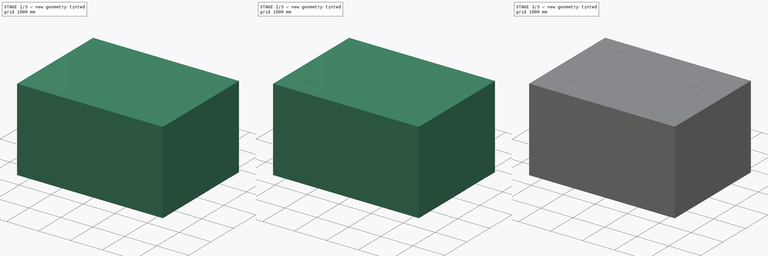
[diagram: build sequence overview — one tinted view per stage of 3, left to right]
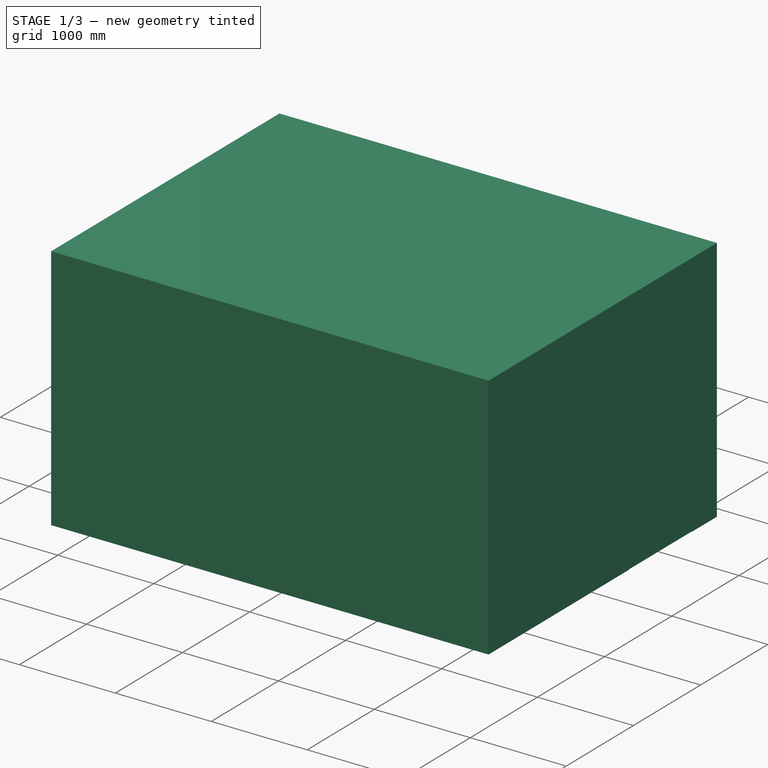
[diagram: stage 1 of 3 — iso view after this stage's code; geometry added in this stage tinted green]
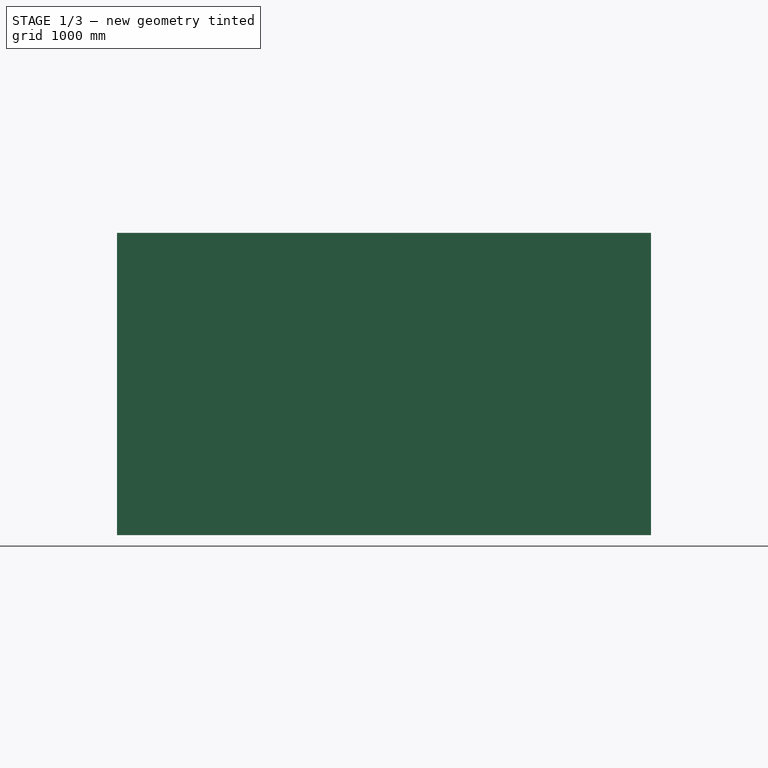
[diagram: stage 1 of 3 — front view after this stage's code; geometry added in this stage tinted green]
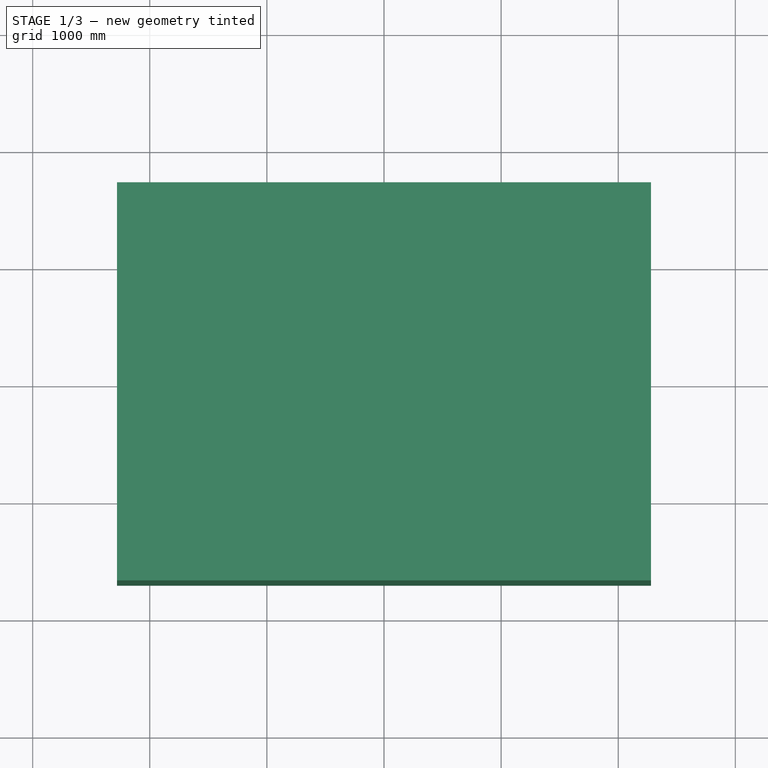
[diagram: stage 1 of 3 — top view after this stage's code; geometry added in this stage tinted green]
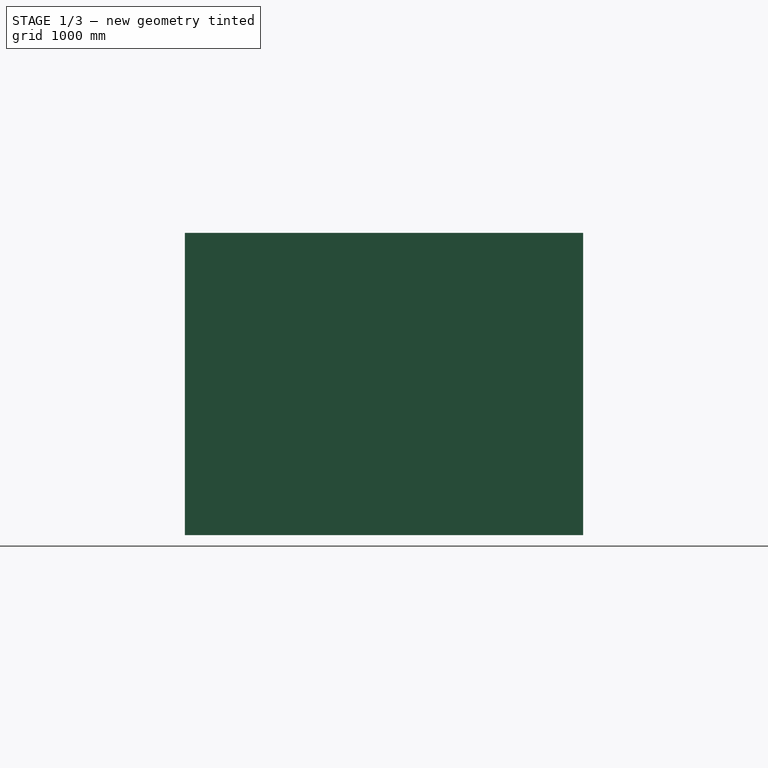
[diagram: stage 1 of 3 — right view after this stage's code; geometry added in this stage tinted green]
FCSTD DOCUMENT  (FreeCAD 0.19R14555 (Git shallow))
Label: Geometry
License: All rights reserved
LicenseURL: http://en.wikipedia.org/wiki/All_rights_reserved
objects: Sketcher::SketchObject×8, Part::RuledSurface×7, PartDesign::ShapeBinder×7, PartDesign::Pocket×4, PartDesign::Plane×3, PartDesign::Pad×3, PartDesign::Body×2, App::Part×1
note: 41 computed .brp shape members not serialized (recipe doc carries the construction recipe); baked Part::Feature solids carry a one-line shape summary decoded from their .brp

FEATURE [PartDesign::Plane] DatumPlane
  AttachmentOffset = pos=(0,0,2280) rot=(0,0,1;0rad)
  Length = 3995.21
  MapMode = 2
  Placement = pos=(2280,-5.063e-13,5.063e-13) rot=(0.57735,0.57735,0.57735;2.0944rad)
  ResizeMode = 0
  Support = -> [YZ_Plane001]
  Width = 3200.21
FEATURE [Sketcher::SketchObject] Sketch
  FullyConstrained = true
  MapMode = 5
  Placement = pos=(2280,-5.063e-13,5.063e-13) rot=(0.57735,0.57735,0.57735;2.0944rad)
  Support = -> [DatumPlane]
  sketch-geometry (4):
    g0: LineSegment StartX=390 StartY=0 StartZ=0 EndX=1325 EndY=0 EndZ=0
    g1: LineSegment StartX=1325 StartY=0 StartZ=0 EndX=1325 EndY=2100 EndZ=0
    g2: LineSegment StartX=1325 StartY=2100 StartZ=0 EndX=390 EndY=2100 EndZ=0
    g3: LineSegment StartX=390 StartY=2100 StartZ=0 EndX=390 EndY=0 EndZ=0
  constraints (12):
    c: Coincident(g0,g1)
    c: Coincident(g1,g2)
    c: Coincident(g2,g3)
    c: Coincident(g3,g0)
    c: Horizontal(g0)
    c: Horizontal(g2)
    c: Vertical(g1)
    c: Vertical(g3)
    c: Distance(g3) = 2100
    c: Distance(g0) = 935
    c: PointOnObject(g0,g-1)
    c: Distance(g-1,g0) = 1325
FEATURE [Part::RuledSurface] Ruled_Surface  label="door"
  Curve1 = -> Sketch [Edge3]
  Curve2 = -> Sketch [Edge1]
  Orientation = 0
  Placement = pos=(2280,-5.06e-13,5.06e-13) rot=(0.57735,0.57735,0.57735;2.0944rad)
FEATURE [Sketcher::SketchObject] Sketch001
  FullyConstrained = true
  MapMode = 5
  Support = -> [XY_Plane001]
  sketch-geometry (5):
    g0: LineSegment StartX=2280 StartY=-1700 StartZ=0 EndX=2280 EndY=1700 EndZ=0
    g1: LineSegment StartX=2280 StartY=1700 StartZ=0 EndX=-2280 EndY=1700 EndZ=0
    g2: LineSegment StartX=-2280 StartY=1700 StartZ=0 EndX=-2280 EndY=-1700 EndZ=0
    g3: LineSegment StartX=-2280 StartY=-1700 StartZ=0 EndX=2280 EndY=-1700 EndZ=0
    g4: Circle CenterX=0 CenterY=0 CenterZ=0 NormalX=0 NormalY=0 NormalZ=1 AngleXU=0 Radius=2844.01
  constraints (14):
    c: Coincident(g0,g1)
    c: Coincident(g1,g2)
    c: Coincident(g2,g3)
    c: Coincident(g3,g0)
    c: Equal(g0,g2)
    c: PointOnObject(g0,g4)
    c: PointOnObject(g1,g4)
    c: PointOnObject(g2,g4)
    c: PointOnObject(g3,g4)
    c: Coincident(g4,g-1)
    c: Equal(g1,g3)
    c: Horizontal(g1)
    c: Distance(g1) = 4560
    c: Distance(g0) = 3400
FEATURE [PartDesign::Pad] Pad
  Direction = (1,1,1)
  Length = 2580
  Length2 = 100
  Profile = -> Sketch001
  Type = 0
FEATURE [PartDesign::Pocket] Pocket
  BaseFeature = -> Pad
  Length = 5
  Length2 = 100
  Profile = -> Sketch
  Type = 0
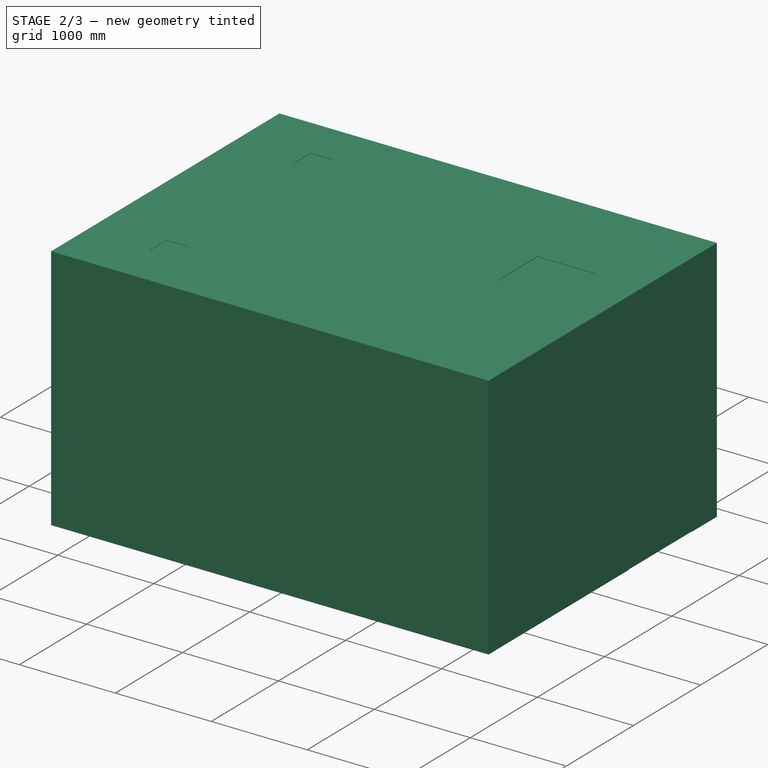
[diagram: stage 2 of 3 — iso view after this stage's code; geometry added in this stage tinted green]
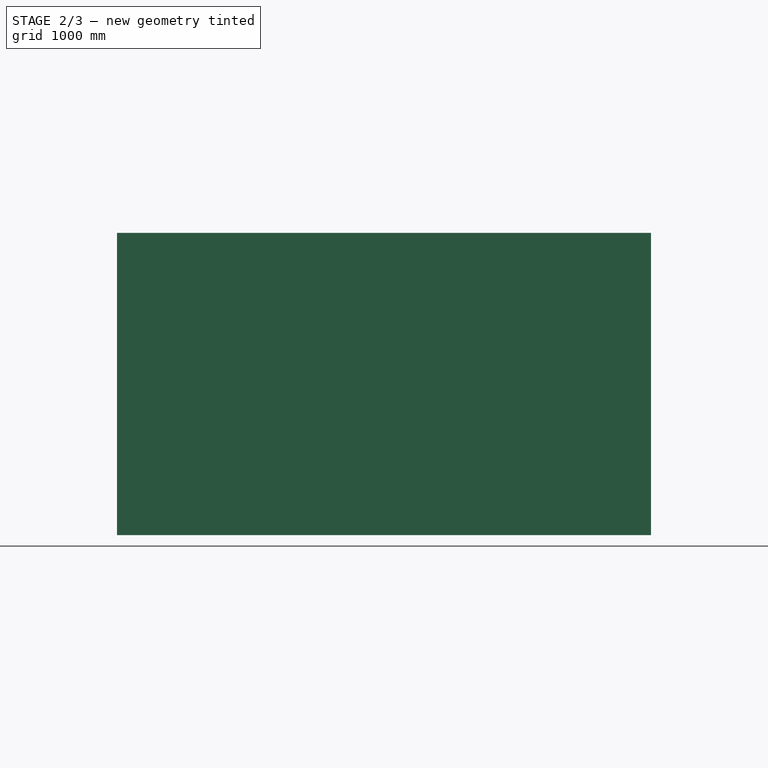
[diagram: stage 2 of 3 — front view after this stage's code; geometry added in this stage tinted green]
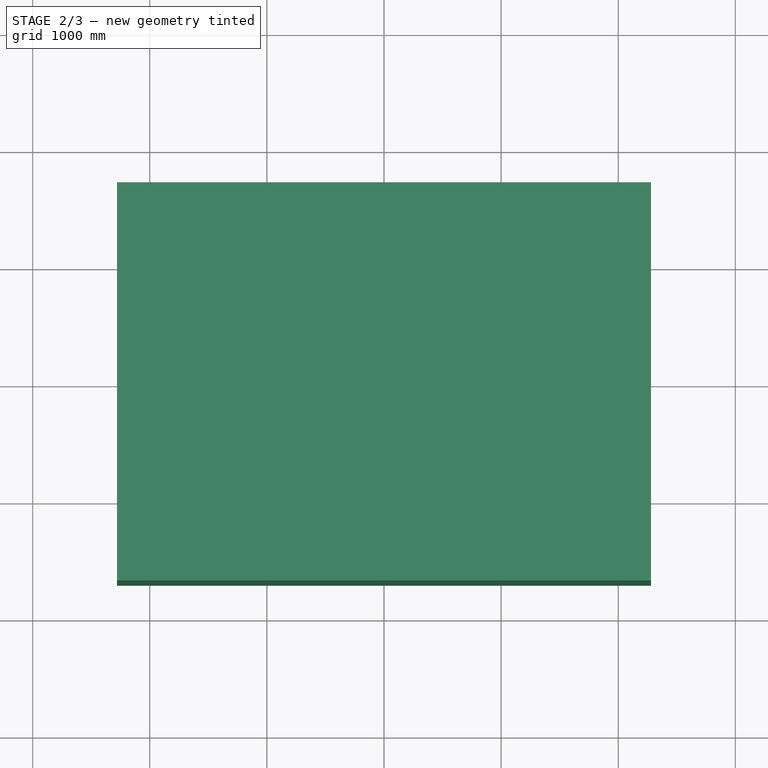
[diagram: stage 2 of 3 — top view after this stage's code; geometry added in this stage tinted green]
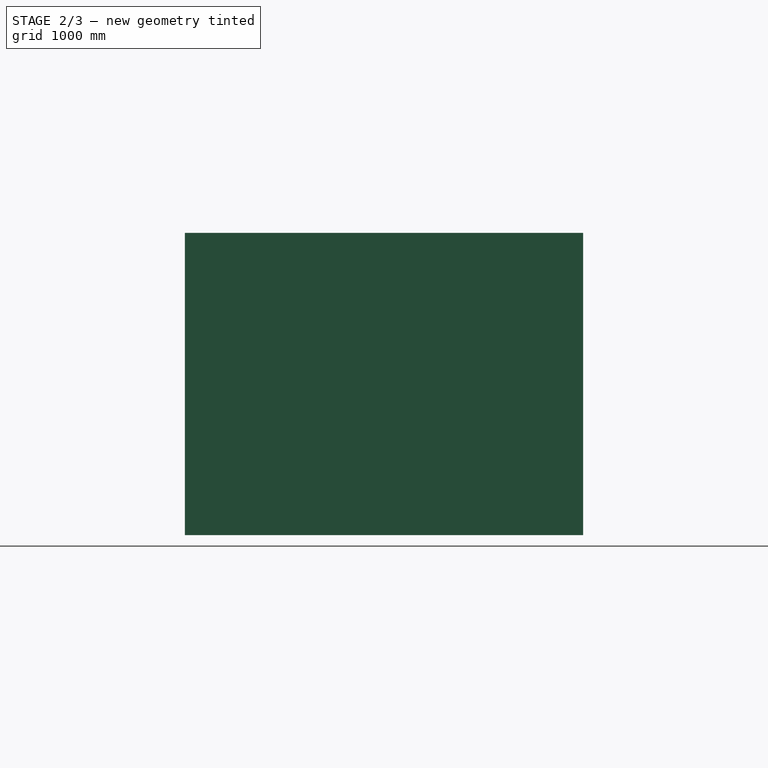
[diagram: stage 2 of 3 — right view after this stage's code; geometry added in this stage tinted green]
FEATURE [PartDesign::Plane] DatumPlane001
  AttachmentOffset = pos=(0,0,2580) rot=(0,0,1;0rad)
  Length = 5347.5
  MapMode = 5
  Placement = pos=(0,0,2580) rot=(0,0,1;0rad)
  ResizeMode = 0
  Support = -> [XY_Plane001]
  Width = 4187.5
FEATURE [Sketcher::SketchObject] Sketch002
  ExternalGeometry = -> [Pocket]
  FullyConstrained = true
  MapMode = 5
  Placement = pos=(0,0,2580) rot=(0,0,1;0rad)
  Support = -> [DatumPlane001]
  sketch-geometry (12):
    g0: LineSegment StartX=-1605 StartY=1200 StartZ=0 EndX=-1355 EndY=1200 EndZ=0
    g1: LineSegment StartX=-1355 StartY=1200 StartZ=0 EndX=-1355 EndY=950 EndZ=0
    g2: LineSegment StartX=-1355 StartY=950 StartZ=0 EndX=-1605 EndY=950 EndZ=0
    g3: LineSegment StartX=-1605 StartY=950 StartZ=0 EndX=-1605 EndY=1200 EndZ=0
    g4: LineSegment StartX=-1605 StartY=-950 StartZ=0 EndX=-1355 EndY=-950 EndZ=0
    g5: LineSegment StartX=-1355 StartY=-950 StartZ=0 EndX=-1355 EndY=-1200 EndZ=0
    g6: LineSegment StartX=-1355 StartY=-1200 StartZ=0 EndX=-1605 EndY=-1200 EndZ=0
    g7: LineSegment StartX=-1605 StartY=-1200 StartZ=0 EndX=-1605 EndY=-950 EndZ=0
    g8: LineSegment StartX=1780 StartY=600 StartZ=0 EndX=1180 EndY=600 EndZ=0
    g9: LineSegment StartX=1180 StartY=600 StartZ=0 EndX=1180 EndY=-2.274e-13 EndZ=0
    g10: LineSegment StartX=1180 StartY=-2.274e-13 StartZ=0 EndX=1780 EndY=-2.274e-13 EndZ=0
    g11: LineSegment StartX=1780 StartY=-2.274e-13 StartZ=0 EndX=1780 EndY=600 EndZ=0
  constraints (36):
    c: Coincident(g0,g1)
    c: Coincident(g1,g2)
    c: Coincident(g2,g3)
    c: Coincident(g3,g0)
    c: Horizontal(g0)
    c: Horizontal(g2)
    c: Vertical(g1)
    c: Vertical(g3)
    c: Coincident(g4,g5)
    c: Coincident(g5,g6)
    c: Coincident(g6,g7)
    c: Coincident(g7,g4)
    c: Horizontal(g4)
    c: Horizontal(g6)
    c: Vertical(g5)
    c: Vertical(g7)
    c: Coincident(g8,g9)
    c: Coincident(g9,g10)
    c: Coincident(g10,g11)
    c: Coincident(g11,g8)
    c: Horizontal(g8)
    c: Horizontal(g10)
    c: Vertical(g9)
    c: Vertical(g11)
    c: Equal(g1,g0)
    c: Equal(g2,g4)
    c: Equal(g4,g7)
    c: Distance(g2) = 250
    c: Vertical(g4,g1)
    c: Equal(g10,g9)
    c: Distance(g10) = 600
    c: DistanceX(g8,g-3) = 500
    c: DistanceY(g8,g-3) = 1100
    c: DistanceY(g0,g-3) = 500
    c: DistanceY(g-4,g6) = 500
    c: DistanceX(g-3,g0) = 675
FEATURE [Part::RuledSurface] Ruled_Surface001  label="inlet1"
  Curve1 = -> Sketch002 [Edge3]
  Curve2 = -> Sketch002 [Edge1]
  Orientation = 0
  Placement = pos=(0,0,2580) rot=(0,0,1;0rad)
FEATURE [Part::RuledSurface] Ruled_Surface002  label="inlet2"
  Curve1 = -> Sketch002 [Edge5]
  Curve2 = -> Sketch002 [Edge7]
  Orientation = 0
  Placement = pos=(0,0,2580) rot=(0,0,1;0rad)
FEATURE [Part::RuledSurface] Ruled_Surface003  label="outlet"
  Curve1 = -> Sketch002 [Edge9]
  Curve2 = -> Sketch002 [Edge11]
  Orientation = 0
  Placement = pos=(0,0,2580) rot=(0,0,1;0rad)
FEATURE [PartDesign::Plane] DatumPlane002
  AttachmentOffset = pos=(0,0,-2280) rot=(0,0,1;0rad)
  Length = 3995.21
  MapMode = 5
  Placement = pos=(-2280,5.063e-13,-5.063e-13) rot=(0.57735,0.57735,0.57735;2.0944rad)
  ResizeMode = 0
  Support = -> [YZ_Plane001]
  Width = 3200.21
FEATURE [Sketcher::SketchObject] Sketch003
  ExternalGeometry = -> [Pocket]
  FullyConstrained = true
  MapMode = 5
  Placement = pos=(-2280,5.063e-13,-5.063e-13) rot=(0.57735,0.57735,0.57735;2.0944rad)
  Support = -> [DatumPlane002]
  sketch-geometry (8):
    g0: LineSegment StartX=-1000 StartY=2425 StartZ=0 EndX=-515 EndY=2425 EndZ=0
    g1: LineSegment StartX=-515 StartY=2425 StartZ=0 EndX=-515 EndY=800 EndZ=0
    g2: LineSegment StartX=-515 StartY=800 StartZ=0 EndX=-1000 EndY=800 EndZ=0
    g3: LineSegment StartX=-1000 StartY=800 StartZ=0 EndX=-1000 EndY=2425 EndZ=0
    g4: LineSegment StartX=-515 StartY=800 StartZ=0 EndX=1000 EndY=800 EndZ=0
    g5: LineSegment StartX=1000 StartY=800 StartZ=0 EndX=1000 EndY=2425 EndZ=0
    g6: LineSegment StartX=1000 StartY=2425 StartZ=0 EndX=-515 EndY=2425 EndZ=0
    g7: LineSegment StartX=-515 StartY=2425 StartZ=0 EndX=-515 EndY=800 EndZ=0
  constraints (22):
    c: Coincident(g0,g1)
    c: Coincident(g1,g2)
    c: Coincident(g2,g3)
    c: Coincident(g3,g0)
    c: Horizontal(g0)
    c: Horizontal(g2)
    c: Vertical(g1)
    c: Vertical(g3)
    c: Coincident(g4,g5)
    c: Coincident(g5,g6)
    c: Coincident(g6,g7)
    c: Coincident(g7,g4)
    c: Horizontal(g4)
    c: Horizontal(g6)
    c: Vertical(g5)
    c: Coincident(g1,g4)
    c: Coincident(g6,g0)
    c: Distance(g3) = 1625
    c: DistanceY(g-4,g2) = 800
    c: DistanceX(g-4,g2) = 700
    c: Distance(g2) = 485
    c: DistanceX(g4,g-4) = 700
FEATURE [Part::RuledSurface] Ruled_Surface004  label="windowsmall"
  Curve1 = -> Sketch003 [Edge7]
  Curve2 = -> Sketch003 [Edge1]
  Orientation = 0
  Placement = pos=(-2280,5.06e-13,-5.06e-13) rot=(0.57735,0.57735,0.57735;2.0944rad)
FEATURE [Part::RuledSurface] Ruled_Surface005  label="windowbig"
  Curve1 = -> Sketch003 [Edge5]
  Curve2 = -> Sketch003 [Edge3]
  Orientation = 0
  Placement = pos=(-2280,5.06e-13,-5.06e-13) rot=(0.57735,0.57735,0.57735;2.0944rad)
FEATURE [Sketcher::SketchObject] Sketch004
  ExternalGeometry = -> [Sketch003]
  FullyConstrained = true
  MapMode = 5
  Placement = pos=(-2280,5.063e-13,-5.063e-13) rot=(0.57735,0.57735,0.57735;2.0944rad)
  Support = -> [DatumPlane002]
  sketch-geometry (4):
    g0: LineSegment StartX=-1000 StartY=2425 StartZ=0 EndX=1000 EndY=2425 EndZ=0
    g1: LineSegment StartX=1000 StartY=2425 StartZ=0 EndX=1000 EndY=800 EndZ=0
    g2: LineSegment StartX=1000 StartY=800 StartZ=0 EndX=-1000 EndY=800 EndZ=0
    g3: LineSegment StartX=-1000 StartY=800 StartZ=0 EndX=-1000 EndY=2425 EndZ=0
  constraints (10):
    c: Coincident(g0,g1)
    c: Coincident(g1,g2)
    c: Coincident(g2,g3)
    c: Coincident(g3,g0)
    c: Horizontal(g0)
    c: Horizontal(g2)
    c: Vertical(g1)
    c: Vertical(g3)
    c: Coincident(g0,g-3)
    c: Coincident(g2,g-5)
FEATURE [PartDesign::Pocket] Pocket001
  BaseFeature = -> Pocket
  Length = 5
  Length2 = 100
  Profile = -> Sketch004
  Type = 0
FEATURE [PartDesign::Pocket] Pocket002
  BaseFeature = -> Pocket001
  Length = 5
  Length2 = 100
  Profile = -> Sketch002
  Type = 0
FEATURE [PartDesign::ShapeBinder] ShapeBinder001  label="Columns"
  Support = -> [Pad002]
  TraceSupport = false
FEATURE [PartDesign::Body] Body001
  Group = -> [Sketch005,Sketch006,Pad001,Pad002,ShapeBinder001]
  Origin = -> Origin002
  Tip = -> Pad002
FEATURE [Sketcher::SketchObject] Sketch007
  FullyConstrained = true
  MapMode = 5
  Placement = pos=(0,0,0) rot=(1,0,0;3.14159rad)
  Support = -> [Pocket002]
  sketch-geometry (5):
    g0: LineSegment StartX=1000 StartY=1000 StartZ=0 EndX=-1000 EndY=1000 EndZ=0
    g1: LineSegment StartX=-1000 StartY=1000 StartZ=0 EndX=-1000 EndY=-1000 EndZ=0
    g2: LineSegment StartX=-1000 StartY=-1000 StartZ=0 EndX=1000 EndY=-1000 EndZ=0
    g3: LineSegment StartX=1000 StartY=-1000 StartZ=0 EndX=1000 EndY=1000 EndZ=0
    g4: Circle CenterX=0 CenterY=0 CenterZ=0 NormalX=0 NormalY=0 NormalZ=1 AngleXU=0 Radius=1414.21
  constraints (14):
    c: Coincident(g0,g1)
    c: Coincident(g1,g2)
    c: Coincident(g2,g3)
    c: Coincident(g3,g0)
    c: Equal(g0,g1)
    c: Equal(g0,g2)
    c: Equal(g0,g3)
    c: PointOnObject(g0,g4)
    c: PointOnObject(g1,g4)
    c: PointOnObject(g2,g4)
    c: PointOnObject(g3,g4)
    c: Coincident(g4,g-1)
    c: Distance(g3) = 2000
    c: Parallel(g3,g-2)
FEATURE [PartDesign::Pocket] Pocket003
  BaseFeature = -> Pocket002
  Length = 5
  Length2 = 100
  Profile = -> Sketch007
  Type = 0
FEATURE [Part::RuledSurface] Ruled_Surface006  label="Emission_Surface"
  Curve1 = -> Pocket003 [Edge15]
  Curve2 = -> Pocket003 [Edge17]
  Orientation = 0
  Placement = pos=(0,0,0) rot=(1,0,0;3.14159rad)
FEATURE [PartDesign::ShapeBinder] ShapeBinder  label="floor"
  Support = -> [Pocket003]
  TraceSupport = false
FEATURE [PartDesign::ShapeBinder] ShapeBinder002  label="walloutside"
  Support = -> [Pocket003]
  TraceSupport = false
FEATURE [PartDesign::ShapeBinder] ShapeBinder003  label="walldoor"
  Support = -> [Pocket003]
  TraceSupport = false
FEATURE [PartDesign::ShapeBinder] ShapeBinder004  label="wallwindow"
  Support = -> [Pocket003]
  TraceSupport = false
FEATURE [PartDesign::ShapeBinder] ShapeBinder005  label="wallinside"
  Support = -> [Pocket003]
  TraceSupport = false
FEATURE [PartDesign::ShapeBinder] ShapeBinder006  label="ceiling"
  Support = -> [Pocket003]
  TraceSupport = false
FEATURE [PartDesign::Body] Body  label="Chamber"
  Group = -> [DatumPlane,Sketch,Sketch001,Pad,Pocket,DatumPlane001,Sketch002,DatumPlane002,Sketch003,Sketch004,Pocket001,Pocket002,Sketch007,Pocket003,ShapeBinder,ShapeBinder002,ShapeBinder003,ShapeBinder004,ShapeBinder005,ShapeBinder006]
  Origin = -> Origin001
  Tip = -> Pocket003
FEATURE [App::Part] Part
  Group = -> [Body,Body001]
  Origin = -> Origin
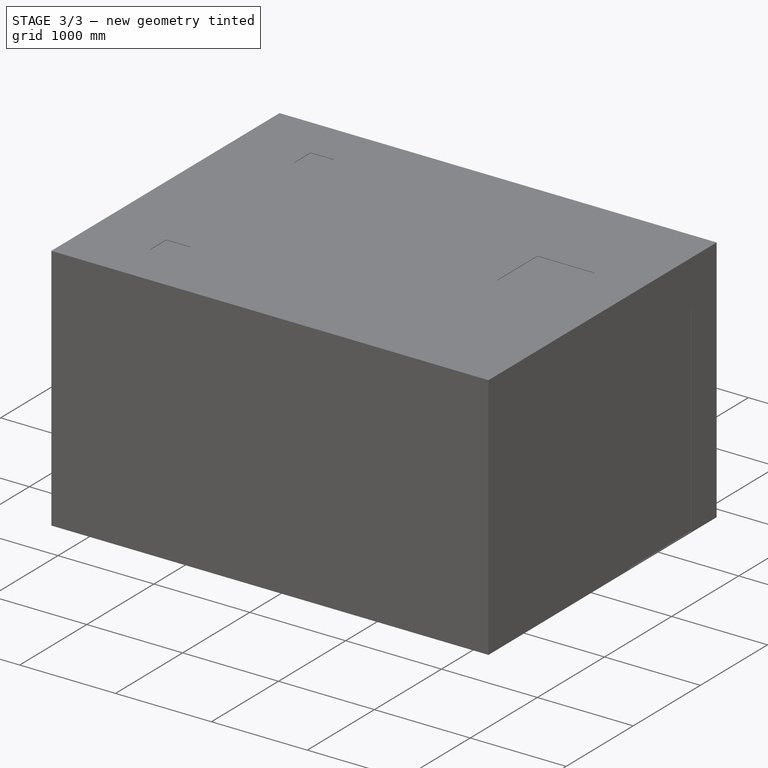
[diagram: stage 3 of 3 — iso view after this stage's code; geometry added in this stage tinted green]
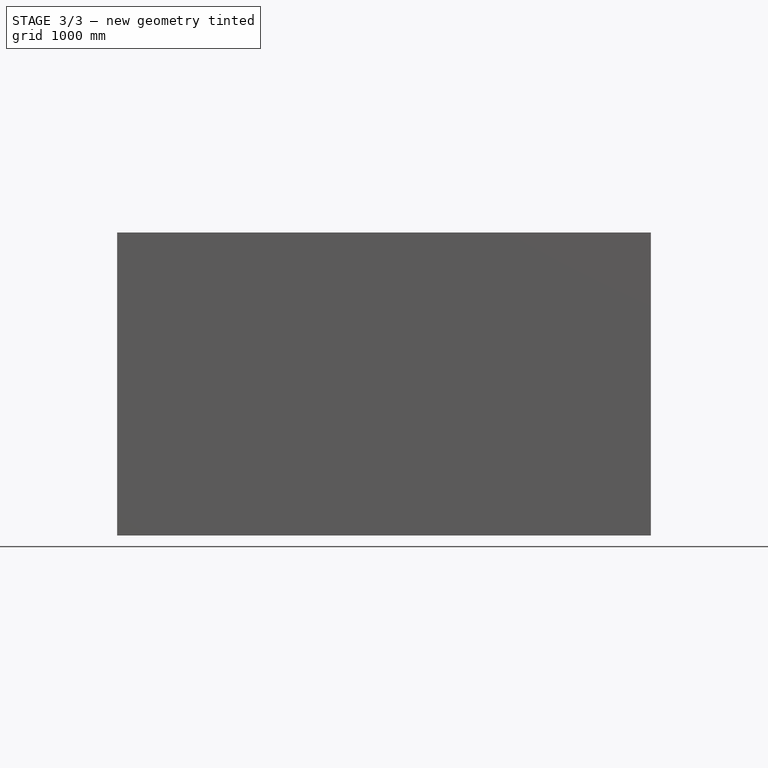
[diagram: stage 3 of 3 — front view after this stage's code; geometry added in this stage tinted green]
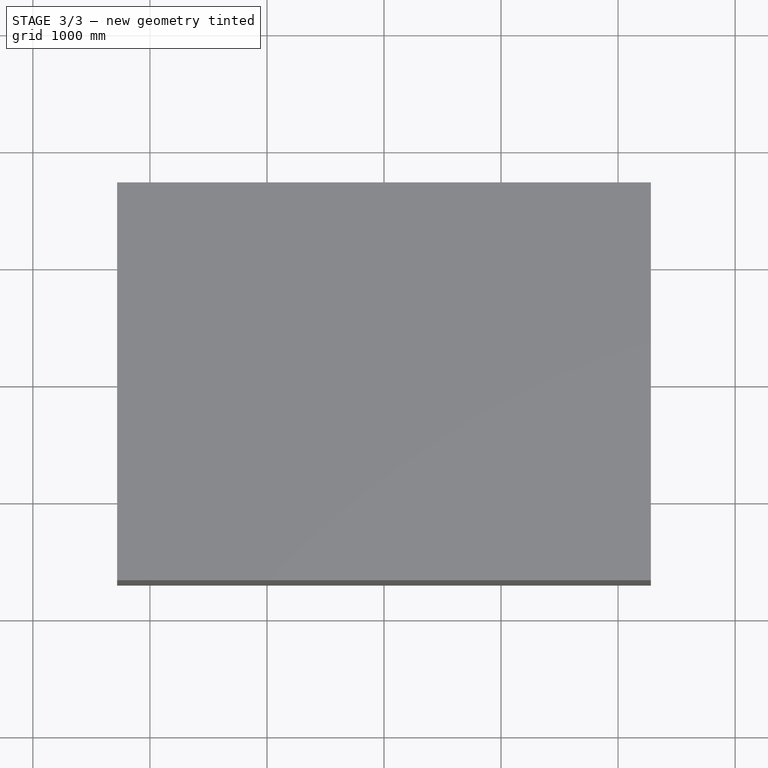
[diagram: stage 3 of 3 — top view after this stage's code; geometry added in this stage tinted green]
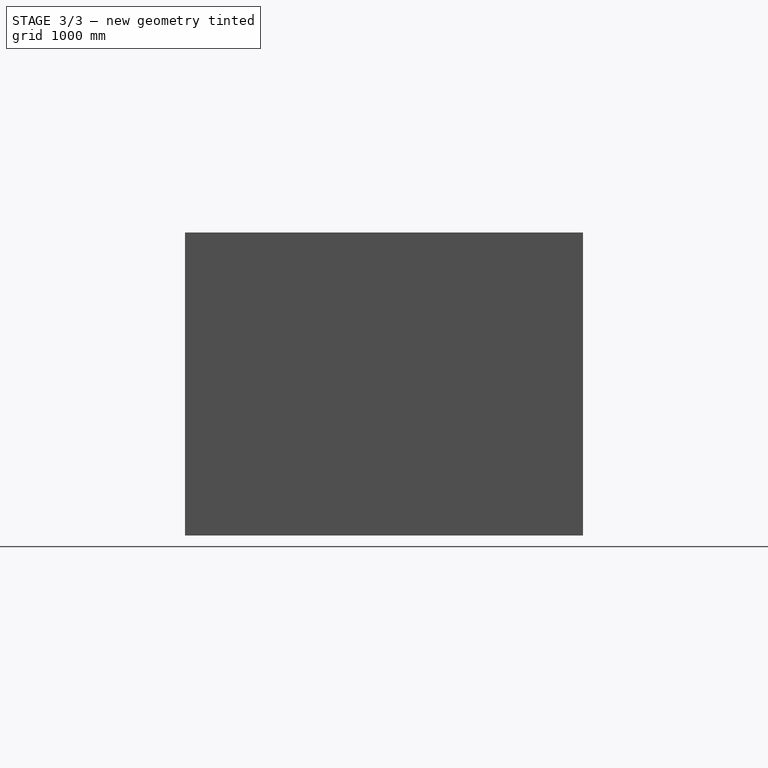
[diagram: stage 3 of 3 — right view after this stage's code; geometry added in this stage tinted green]
FEATURE [Sketcher::SketchObject] Sketch005
  FullyConstrained = true
  MapMode = 5
  Support = -> [XY_Plane002]
  sketch-geometry (25):
    g0: LineSegment StartX=2130 StartY=1550 StartZ=0 EndX=-2130 EndY=1550 EndZ=0
    g1: LineSegment StartX=-2130 StartY=1550 StartZ=0 EndX=-2130 EndY=-1550 EndZ=0
    g2: LineSegment StartX=-2130 StartY=-1550 StartZ=0 EndX=2130 EndY=-1550 EndZ=0
    g3: LineSegment StartX=2130 StartY=-1550 StartZ=0 EndX=2130 EndY=1550 EndZ=0
    g4: Circle CenterX=0 CenterY=0 CenterZ=0 NormalX=0 NormalY=0 NormalZ=1 AngleXU=0 Radius=2634.27
    g5: LineSegment StartX=-2180 StartY=1600 StartZ=0 EndX=-2180 EndY=1500 EndZ=0
    g6: LineSegment StartX=-2180 StartY=1500 StartZ=0 EndX=-2080 EndY=1500 EndZ=0
    g7: LineSegment StartX=-2080 StartY=1500 StartZ=0 EndX=-2080 EndY=1600 EndZ=0
    g8: LineSegment StartX=-2080 StartY=1600 StartZ=0 EndX=-2180 EndY=1600 EndZ=0
    g9: Circle CenterX=-2130 CenterY=1550 CenterZ=0 NormalX=0 NormalY=0 NormalZ=1 AngleXU=0 Radius=70.7107
    g10: LineSegment StartX=2180 StartY=1600 StartZ=0 EndX=2080 EndY=1600 EndZ=0
    g11: LineSegment StartX=2080 StartY=1600 StartZ=0 EndX=2080 EndY=1500 EndZ=0
    g12: LineSegment StartX=2080 StartY=1500 StartZ=0 EndX=2180 EndY=1500 EndZ=0
    g13: LineSegment StartX=2180 StartY=1500 StartZ=0 EndX=2180 EndY=1600 EndZ=0
    g14: Circle CenterX=2130 CenterY=1550 CenterZ=0 NormalX=0 NormalY=0 NormalZ=1 AngleXU=0 Radius=70.7107
    g15: LineSegment StartX=2180 StartY=-1600 StartZ=0 EndX=2180 EndY=-1500 EndZ=0
    g16: LineSegment StartX=2180 StartY=-1500 StartZ=0 EndX=2080 EndY=-1500 EndZ=0
    g17: LineSegment StartX=2080 StartY=-1500 StartZ=0 EndX=2080 EndY=-1600 EndZ=0
    g18: LineSegment StartX=2080 StartY=-1600 StartZ=0 EndX=2180 EndY=-1600 EndZ=0
    g19: Circle CenterX=2130 CenterY=-1550 CenterZ=0 NormalX=0 NormalY=0 NormalZ=1 AngleXU=0 Radius=70.7107
    g20: LineSegment StartX=-2180 StartY=-1600 StartZ=0 EndX=-2080 EndY=-1600 EndZ=0
    g21: LineSegment StartX=-2080 StartY=-1600 StartZ=0 EndX=-2080 EndY=-1500 EndZ=0
    g22: LineSegment StartX=-2080 StartY=-1500 StartZ=0 EndX=-2180 EndY=-1500 EndZ=0
    g23: LineSegment StartX=-2180 StartY=-1500 StartZ=0 EndX=-2180 EndY=-1600 EndZ=0
    g24: Circle CenterX=-2130 CenterY=-1550 CenterZ=0 NormalX=0 NormalY=0 NormalZ=1 AngleXU=0 Radius=70.7107
  constraints (70):
    c: Coincident(g0,g1)
    c: Coincident(g1,g2)
    c: Coincident(g2,g3)
    c: Coincident(g3,g0)
    c: Equal(g0,g2)
    c: PointOnObject(g0,g4)
    c: PointOnObject(g1,g4)
    c: PointOnObject(g2,g4)
    c: PointOnObject(g3,g4)
    c: Coincident(g4,g-1)
    c: Equal(g3,g1)
    c: Horizontal(g0)
    c: Distance(g3) = 3100
    c: Distance(g2) = 4260
    c: Coincident(g5,g6)
    c: Coincident(g6,g7)
    c: Coincident(g7,g8)
    c: Coincident(g8,g5)
    c: Equal(g5,g6)
    c: Equal(g5,g7)
    c: Equal(g5,g8)
    c: PointOnObject(g5,g9)
    c: PointOnObject(g6,g9)
    c: PointOnObject(g7,g9)
    c: PointOnObject(g8,g9)
    c: Coincident(g9,g0)
    c: Coincident(g10,g11)
    c: Coincident(g11,g12)
    c: Coincident(g12,g13)
    c: Coincident(g13,g10)
    c: Equal(g10,g11)
    c: Equal(g10,g12)
    c: Equal(g10,g13)
    c: PointOnObject(g10,g14)
    c: PointOnObject(g11,g14)
    c: PointOnObject(g12,g14)
    c: PointOnObject(g13,g14)
    c: Coincident(g14,g0)
    c: Coincident(g15,g16)
    c: Coincident(g16,g17)
    c: Coincident(g17,g18)
    c: Coincident(g18,g15)
    c: Equal(g15,g16)
    c: Equal(g15,g17)
    c: Equal(g15,g18)
    c: PointOnObject(g15,g19)
    c: PointOnObject(g16,g19)
    c: PointOnObject(g17,g19)
    c: PointOnObject(g18,g19)
    c: Coincident(g19,g2)
    c: Coincident(g20,g21)
    c: Coincident(g21,g22)
    c: Coincident(g22,g23)
    c: Coincident(g23,g20)
    c: Equal(g20,g21)
    c: Equal(g20,g22)
    c: Equal(g20,g23)
    c: PointOnObject(g20,g24)
    c: PointOnObject(g21,g24)
    c: PointOnObject(g22,g24)
    c: PointOnObject(g23,g24)
    c: Coincident(g24,g1)
    c: Equal(g18,g20)
    c: Equal(g20,g12)
    c: Equal(g12,g6)
    c: Horizontal(g10)
    c: Horizontal(g8)
    c: Horizontal(g22)
    c: Horizontal(g16)
    c: Distance(g15) = 100
FEATURE [Sketcher::SketchObject] Sketch006
  FullyConstrained = true
  MapMode = 5
  Support = -> [XY_Plane002]
  sketch-geometry (5):
    g0: LineSegment StartX=2280 StartY=1700 StartZ=0 EndX=-2280 EndY=1700 EndZ=0
    g1: LineSegment StartX=-2280 StartY=1700 StartZ=0 EndX=-2280 EndY=-1700 EndZ=0
    g2: LineSegment StartX=-2280 StartY=-1700 StartZ=0 EndX=2280 EndY=-1700 EndZ=0
    g3: LineSegment StartX=2280 StartY=-1700 StartZ=0 EndX=2280 EndY=1700 EndZ=0
    g4: Circle CenterX=0 CenterY=0 CenterZ=0 NormalX=0 NormalY=0 NormalZ=1 AngleXU=0 Radius=2844.01
  constraints (14):
    c: Coincident(g0,g1)
    c: Coincident(g1,g2)
    c: Coincident(g2,g3)
    c: Coincident(g3,g0)
    c: Equal(g0,g2)
    c: PointOnObject(g0,g4)
    c: PointOnObject(g1,g4)
    c: PointOnObject(g2,g4)
    c: PointOnObject(g3,g4)
    c: Coincident(g4,g-1)
    c: Horizontal(g0)
    c: Equal(g3,g1)
    c: Distance(g1) = 3400
    c: Distance(g2) = 4560
FEATURE [PartDesign::Pad] Pad001
  Direction = (1,1,1)
  Length = 10
  Length2 = 100
  Profile = -> Sketch006
  Reversed = true
  Type = 0
FEATURE [PartDesign::Pad] Pad002
  BaseFeature = -> Pad001
  Direction = (1,1,1)
  Length = 2580
  Length2 = 100
  Profile = -> Sketch005
  Type = 0
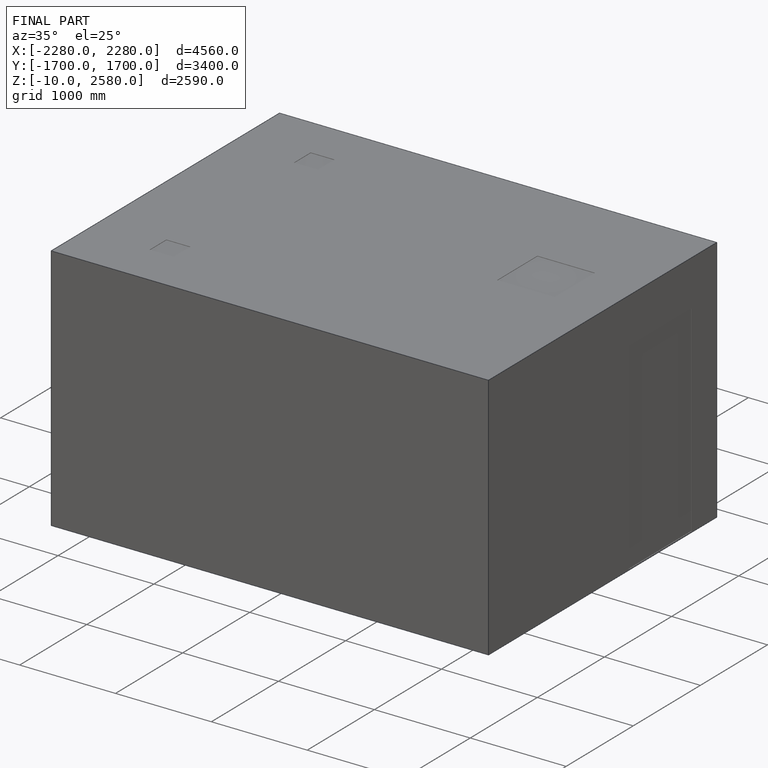
[diagram: finished part — iso view with bounding-box wireframe]
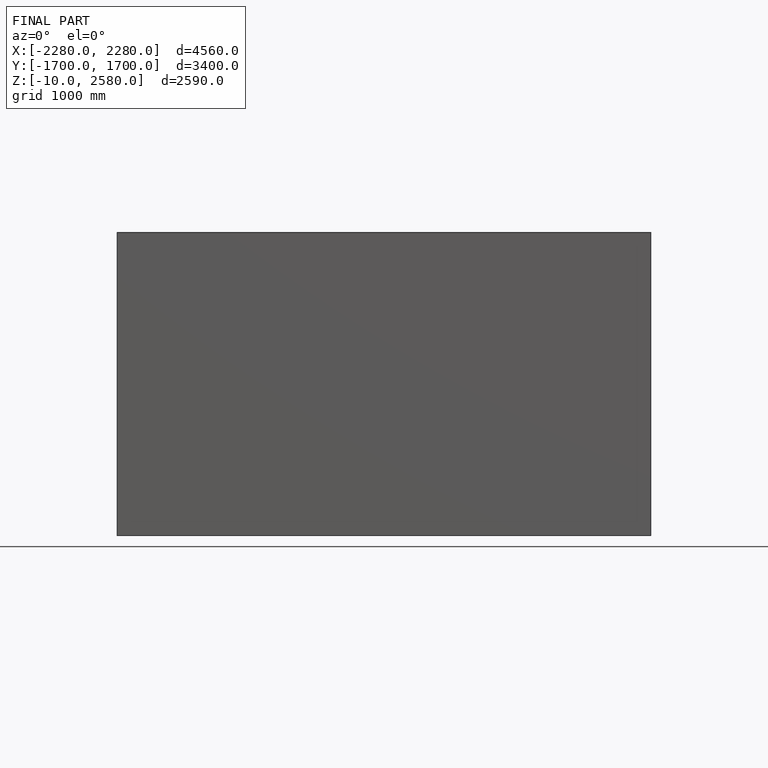
[diagram: finished part — front view with bounding-box wireframe]
